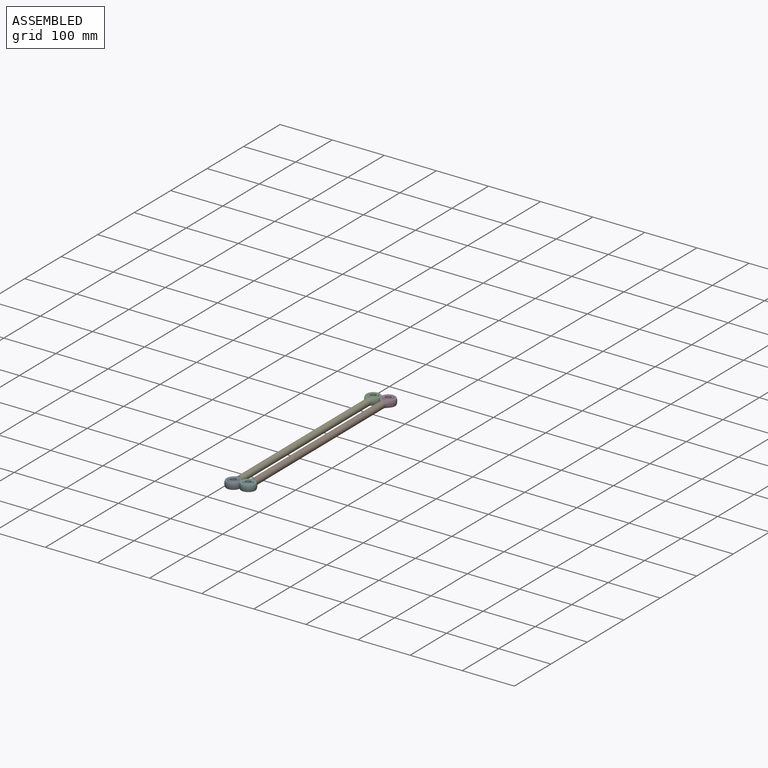
[diagram: assembled view]
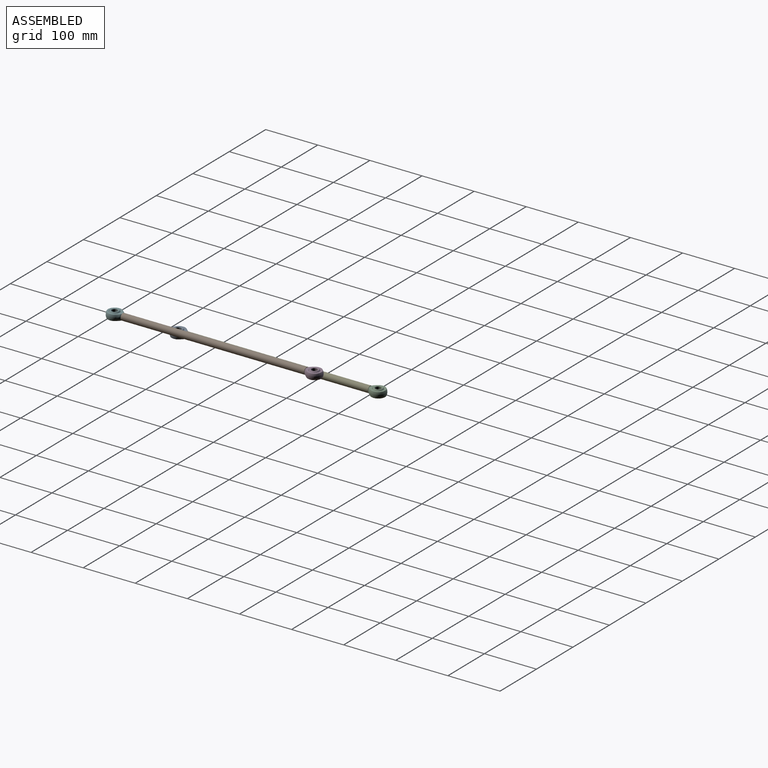
[diagram: assembled view, second angle]
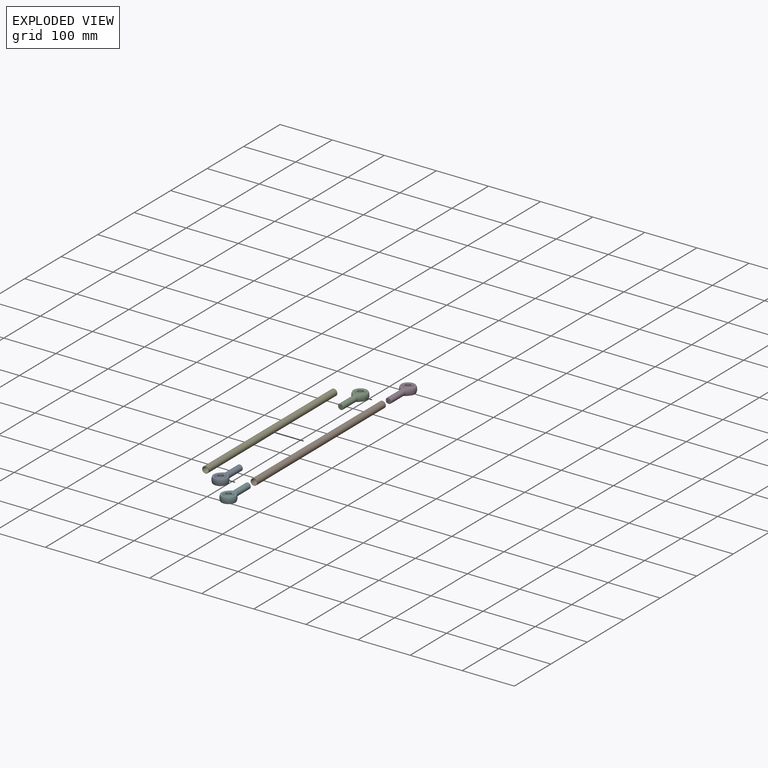
[diagram: exploded view]
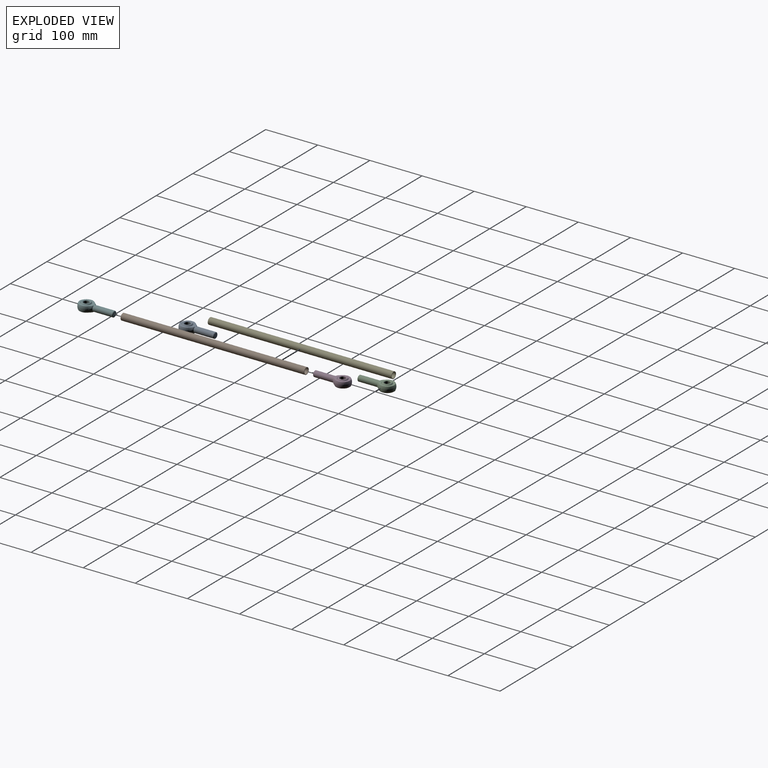
[diagram: exploded view, second angle]
ASSEMBLY  parts=6 mates=4
PART A: 21 faces, bbox 28.6x68.3x28.6 mm
  f0: cylinder r=5.56mm len=37.7mm, axis (0,-1,0), area 1315.3mm2, adj f1,f2,f6,f8,f9,f10,f11
  f1: torus R=1.96mm, axis (0,-1,0), area 38.7mm2, adj f0,f4,f8,f11
  f2: torus R=1.96mm, axis (0,-1,0), area 38.7mm2, adj f0,f5,f8,f11
  f3: sphere r=14.29mm, area 707.3mm2, adj f4,f5,f8,f11
  f4: cone r=11.47mm half-angle=36.6deg, axis (0,1,0), area 75.2mm2, adj f1,f3,f8,f11
  f5: cone r=11.47mm half-angle=36.6deg, axis (0,1,0), area 75.2mm2, adj f2,f3,f8,f11
  f6: cone r=5.56mm half-angle=45deg, axis (0,1,0), area 34.8mm2, adj f0,f7
  f7: plane 9.6x9.6mm, normal (0,-1,0), area 72.4mm2, adj f6
  f8: plane 29.65x26.33mm, normal (0,0,-1), area 267.1mm2, adj f0,f1,f2,f3,f4,f5,f9,f13
  f9: plane 0.53x0.01mm, normal (0,1,0), area 0mm2, adj f0,f8
  f10: plane 0.53x0.01mm, normal (0,1,0), area 0mm2, adj f0,f11
  f11: plane 29.65x26.33mm, normal (0,0,1), area 267.1mm2, adj f0,f1,f2,f3,f4,f5,f10,f12
  f12: torus R=9.88mm, axis (0,0,-1), area 61.8mm2, adj f11,f14
  f13: torus R=9.88mm, axis (0,0,-1), area 61.8mm2, adj f8,f15
  f14: sphere r=10.41mm, area 146.1mm2, adj f12,f16
  f15: sphere r=10.41mm, area 146.1mm2, adj f13,f20
  f16: plane 15.16x15.16mm, normal (0,0,1), area 57.8mm2, adj f14,f17
  f17: cone r=6.25mm half-angle=45deg, axis (0,0,1), area 36.4mm2, adj f16,f18
  f18: cylinder r=5.56mm len=12.89mm, axis (0,0,-1), area 449.9mm2, adj f17,f19
  f19: cone r=5.56mm half-angle=45deg, axis (0,0,-1), area 36.4mm2, adj f18,f20
  f20: plane 15.16x15.16mm, normal (0,0,-1), area 57.8mm2, adj f15,f19
PART B: 4 faces, bbox 12.7x352.4x12.7 mm
  f0: cylinder r=6.35mm len=352.43mm, axis (0,-1,0), area 14061.1mm2, adj f1,f2
  f1: plane 12.7x12.7mm, normal (0,1,0), area 29.7mm2, adj f0,f3
  f2: plane 12.7x12.7mm, normal (0,-1,0), area 29.7mm2, adj f0,f3
  f3: cylinder r=5.56mm len=352.43mm, axis (0,-1,0), area 12303.5mm2, adj f1,f2
PART C: same geometry as A
PART D: same geometry as A
PART E: same geometry as B
PART F: same geometry as A
PLACE A rot(axis=(1,0,0),180deg) t=(-76.71,-206.9,-42.85)mm
PLACE B rot(axis=(1,0,0),180deg) t=(0,38.46,0)mm
PLACE C t=(-76.71,68.6,-42.85)mm
PLACE D at identity fixed
PLACE E rot(axis=(1,0,0),180deg) t=(-76.71,107.06,-42.85)mm
PLACE F rot(axis=(1,0,0),180deg) t=(0,-275.5,0)mm
MATE fastened A.f0 <-> E.f3  axis (0,1,0) through (-76.71,-245.36,-42.85)mm
MATE fastened B.f3 <-> D.f0  axis (0,1,0) through (0,38.46,0)mm
MATE fastened F.f1 <-> B.f3  axis (0,-1,0) through (0,-313.96,0)mm
MATE fastened C.f0 <-> E.f0  axis (0,-1,0) through (-76.71,107.06,-42.85)mm
